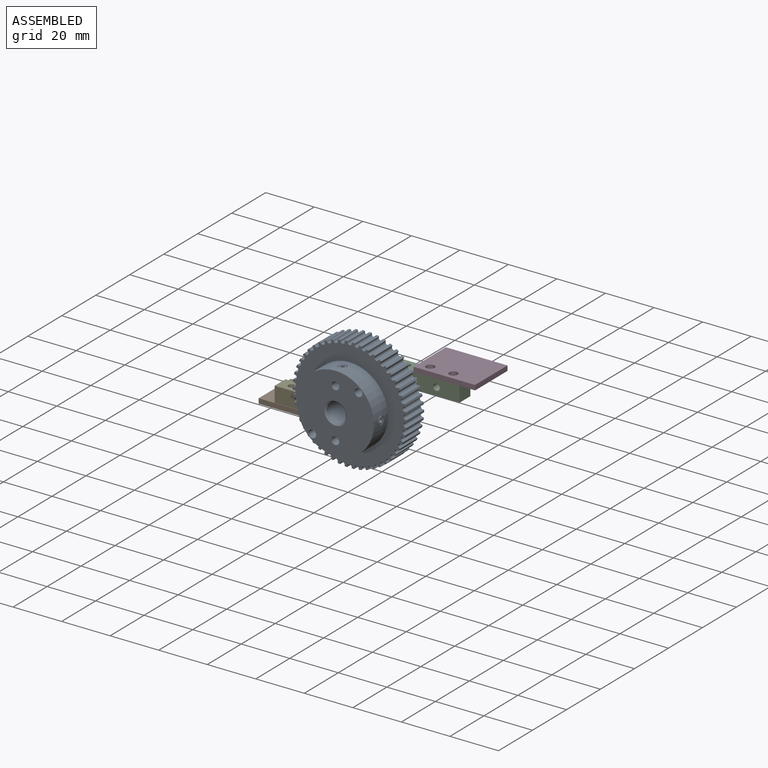
[diagram: assembled view]
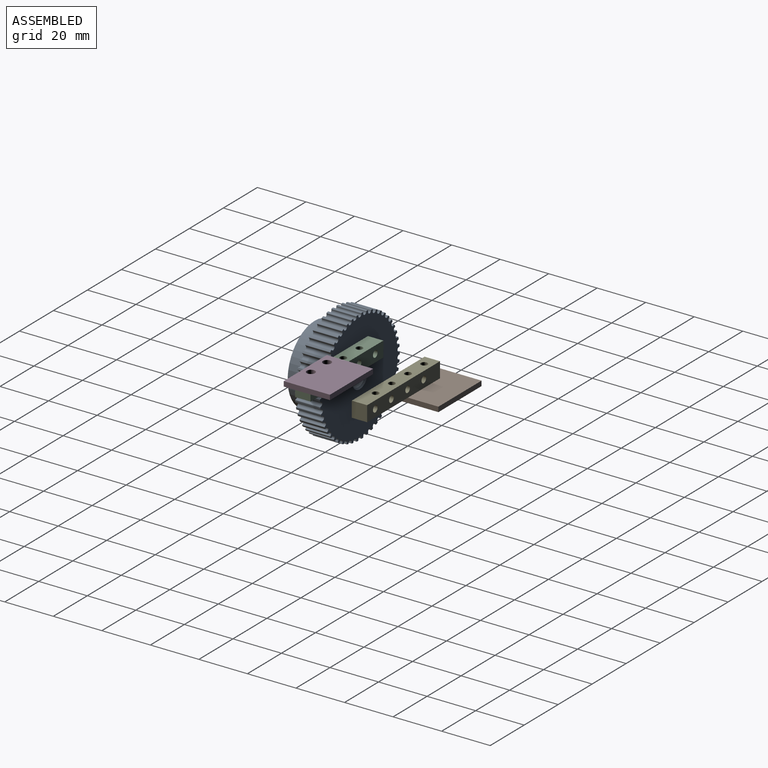
[diagram: assembled view, second angle]
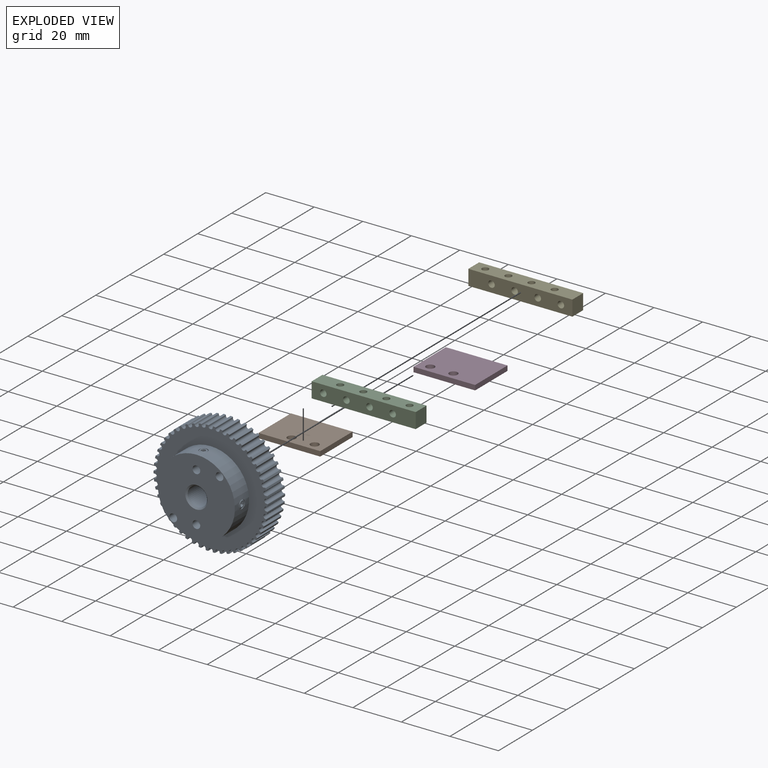
[diagram: exploded view]
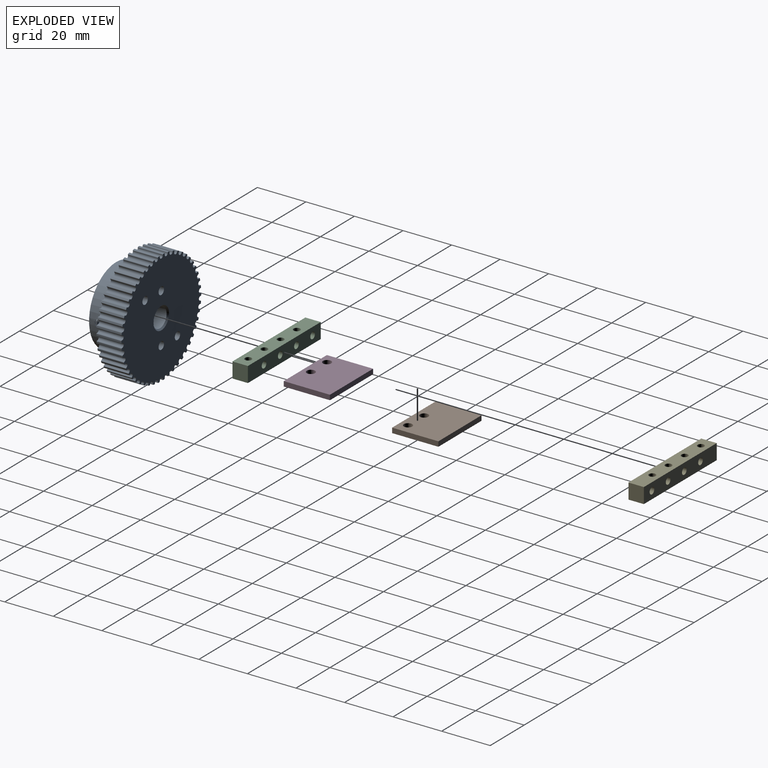
[diagram: exploded view, second angle]
ASSEMBLY  parts=5 mates=4
PART A: 287 faces, bbox 47x18.6x46.9 mm
  f0: plane 46.99x46.93mm, normal (0,1,0), area 1535.5mm2, adj f9,f10,f11,f12,f13,f14,f15,f16
  f1: plane 31.75x31.75mm, normal (0,-1,0), area 694.4mm2, adj f2,f7,f283,f284,f285,f286
  f2: revolved ~9.14x9.14mm, area 22.6mm2, adj f1,f3
  f3: revolved ~17.45x7.95mm, area 416.1mm2, adj f2,f5,f10,f261
  f4: revolved ~3.51x3.51mm, area 3.3mm2, adj f6,f7
  f5: revolved ~3.51x3.51mm, area 6.1mm2, adj f3,f281
  f6: revolved ~3.51x3.51mm, area 9.8mm2, adj f4,f273
  f7: revolved ~31.75x31.75mm, area 1643.3mm2, adj f1,f4,f8,f260
  f8: plane 46.99x46.93mm, normal (0,-1,0), area 841.1mm2, adj f7,f9,f11,f12,f13,f14,f15,f16
  f9: revolved ~10.31x1mm, area 15.7mm2, adj f0,f8,f11,f259
  f10: revolved ~9.14x9.14mm, area 22.6mm2, adj f0,f3
  f11: revolved ~10.31x1mm, area 15.4mm2, adj f0,f8,f9,f12
  f12: revolved ~10.31x0.29mm, area 4.7mm2, adj f0,f8,f11,f62
  f13: revolved ~10.31x0.63mm, area 6.6mm2, adj f0,f8,f63,f67
  f14: revolved ~10.31x0.61mm, area 6.6mm2, adj f0,f8,f70,f71
  f15: revolved ~10.31x0.58mm, area 6.6mm2, adj f0,f8,f74,f75
  f16: revolved ~10.31x0.54mm, area 6.6mm2, adj f0,f8,f78,f79
  f17: revolved ~10.31x0.49mm, area 6.6mm2, adj f0,f8,f82,f83
  f18: revolved ~10.31x0.47mm, area 6.6mm2, adj f0,f8,f86,f87
  f19: revolved ~10.31x0.52mm, area 6.6mm2, adj f0,f8,f90,f91
  f20: revolved ~10.31x0.56mm, area 6.6mm2, adj f0,f8,f94,f95
  f21: revolved ~10.31x0.59mm, area 6.6mm2, adj f0,f8,f98,f99
  f22: revolved ~10.31x0.62mm, area 6.6mm2, adj f0,f8,f102,f103
  f23: revolved ~10.31x0.63mm, area 6.6mm2, adj f0,f8,f106,f107
  f24: revolved ~10.31x0.64mm, area 6.6mm2, adj f0,f8,f110,f111
  f25: revolved ~10.31x0.63mm, area 6.6mm2, adj f0,f8,f114,f115
  f26: revolved ~10.31x0.62mm, area 6.6mm2, adj f0,f8,f118,f119
  f27: revolved ~10.31x0.6mm, area 6.6mm2, adj f0,f8,f122,f123
  f28: revolved ~10.31x0.56mm, area 6.6mm2, adj f0,f8,f126,f127
  f29: revolved ~10.31x0.52mm, area 6.6mm2, adj f0,f8,f130,f131
  f30: revolved ~10.31x0.47mm, area 6.6mm2, adj f0,f8,f134,f135
  f31: revolved ~10.31x0.49mm, area 6.6mm2, adj f0,f8,f138,f139
  f32: revolved ~10.31x0.54mm, area 6.6mm2, adj f0,f8,f142,f143
  f33: revolved ~10.31x0.58mm, area 6.6mm2, adj f0,f8,f146,f147
  f34: revolved ~10.31x0.61mm, area 6.6mm2, adj f0,f8,f150,f151
  f35: revolved ~10.31x0.63mm, area 6.6mm2, adj f0,f8,f154,f155
  f36: revolved ~10.31x0.64mm, area 6.6mm2, adj f0,f8,f158,f159
  f37: revolved ~10.31x0.64mm, area 6.6mm2, adj f0,f8,f162,f163
  f38: revolved ~10.31x0.63mm, area 6.6mm2, adj f0,f8,f166,f167
  f39: revolved ~10.31x0.61mm, area 6.6mm2, adj f0,f8,f170,f171
  f40: revolved ~10.31x0.58mm, area 6.6mm2, adj f0,f8,f174,f175
  f41: revolved ~10.31x0.54mm, area 6.6mm2, adj f0,f8,f178,f179
  f42: revolved ~10.31x0.49mm, area 6.6mm2, adj f0,f8,f182,f183
  f43: revolved ~10.31x0.47mm, area 6.6mm2, adj f0,f8,f186,f187
  f44: revolved ~10.31x0.52mm, area 6.6mm2, adj f0,f8,f190,f191
  f45: revolved ~10.31x0.56mm, area 6.6mm2, adj f0,f8,f194,f195
  f46: revolved ~10.31x0.59mm, area 6.6mm2, adj f0,f8,f198,f199
  f47: revolved ~10.31x0.62mm, area 6.6mm2, adj f0,f8,f202,f203
  f48: revolved ~10.31x0.63mm, area 6.6mm2, adj f0,f8,f206,f207
  f49: revolved ~10.31x0.64mm, area 6.6mm2, adj f0,f8,f210,f211
  f50: revolved ~10.31x0.63mm, area 6.6mm2, adj f0,f8,f214,f215
  f51: revolved ~10.31x0.62mm, area 6.6mm2, adj f0,f8,f218,f219
  f52: revolved ~10.31x0.6mm, area 6.6mm2, adj f0,f8,f222,f223
  f53: revolved ~10.31x0.56mm, area 6.6mm2, adj f0,f8,f226,f227
  f54: revolved ~10.31x0.52mm, area 6.6mm2, adj f0,f8,f230,f231
  f55: revolved ~10.31x0.47mm, area 6.6mm2, adj f0,f8,f234,f235
  f56: revolved ~10.31x0.49mm, area 6.6mm2, adj f0,f8,f238,f239
  f57: revolved ~10.31x0.54mm, area 6.6mm2, adj f0,f8,f242,f243
  f58: revolved ~10.31x0.58mm, area 6.6mm2, adj f0,f8,f246,f247
  f59: revolved ~10.31x0.61mm, area 6.6mm2, adj f0,f8,f250,f251
  f60: revolved ~10.31x0.63mm, area 6.6mm2, adj f0,f8,f254,f255
  f61: revolved ~10.31x0.64mm, area 6.6mm2, adj f0,f8,f66,f259
  f62: revolved ~10.31x0.64mm, area 6.6mm2, adj f0,f8,f12,f258
  f63: revolved ~10.31x0.3mm, area 4.7mm2, adj f0,f8,f13,f64
  f64: revolved ~10.31x1mm, area 15.7mm2, adj f0,f8,f63,f65
  f65: revolved ~10.31x1.1mm, area 15.4mm2, adj f0,f8,f64,f66
  f66: revolved ~10.31x0.33mm, area 4.7mm2, adj f0,f8,f61,f65
  f67: revolved ~10.31x0.35mm, area 4.7mm2, adj f0,f8,f13,f68
  f68: revolved ~10.31x1.19mm, area 15.4mm2, adj f0,f8,f67,f69
  f69: revolved ~10.31x1.1mm, area 15.7mm2, adj f0,f8,f68,f70
  f70: revolved ~10.31x0.33mm, area 4.7mm2, adj f0,f8,f14,f69
  f71: revolved ~10.31x0.38mm, area 4.7mm2, adj f0,f8,f14,f72
  f72: revolved ~10.31x1.25mm, area 15.4mm2, adj f0,f8,f71,f73
  f73: revolved ~10.31x1.19mm, area 15.7mm2, adj f0,f8,f72,f74
  f74: revolved ~10.31x0.35mm, area 4.7mm2, adj f0,f8,f15,f73
  f75: revolved ~10.31x0.39mm, area 4.7mm2, adj f0,f8,f15,f76
  f76: revolved ~10.31x1.3mm, area 15.4mm2, adj f0,f8,f75,f77
  f77: revolved ~10.31x1.26mm, area 15.7mm2, adj f0,f8,f76,f78
  f78: revolved ~10.31x0.37mm, area 4.7mm2, adj f0,f8,f16,f77
  f79: revolved ~10.31x0.4mm, area 4.7mm2, adj f0,f8,f16,f80
  f80: revolved ~10.31x1.33mm, area 15.4mm2, adj f0,f8,f79,f81
  f81: revolved ~10.31x1.3mm, area 15.7mm2, adj f0,f8,f80,f82
  f82: revolved ~10.31x0.39mm, area 4.7mm2, adj f0,f8,f17,f81
  f83: revolved ~10.31x0.41mm, area 4.7mm2, adj f0,f8,f17,f84
  f84: revolved ~10.31x1.33mm, area 15.4mm2, adj f0,f8,f83,f85
  f85: revolved ~10.31x1.33mm, area 15.7mm2, adj f0,f8,f84,f86
  f86: revolved ~10.31x0.39mm, area 4.7mm2, adj f0,f8,f18,f85
  f87: revolved ~10.31x0.4mm, area 4.7mm2, adj f0,f8,f18,f88
  f88: revolved ~10.31x1.32mm, area 15.4mm2, adj f0,f8,f87,f89
  f89: revolved ~10.31x1.33mm, area 15.7mm2, adj f0,f8,f88,f90
  f90: revolved ~10.31x0.39mm, area 4.7mm2, adj f0,f8,f19,f89
  f91: revolved ~10.31x0.4mm, area 4.7mm2, adj f0,f8,f19,f92
  f92: revolved ~10.31x1.28mm, area 15.4mm2, adj f0,f8,f91,f93
  f93: revolved ~10.31x1.32mm, area 15.7mm2, adj f0,f8,f92,f94
  f94: revolved ~10.31x0.39mm, area 4.7mm2, adj f0,f8,f20,f93
  f95: revolved ~10.31x0.38mm, area 4.7mm2, adj f0,f8,f20,f96
  f96: revolved ~10.31x1.22mm, area 15.4mm2, adj f0,f8,f95,f97
  f97: revolved ~10.31x1.28mm, area 15.7mm2, adj f0,f8,f96,f98
  f98: revolved ~10.31x0.38mm, area 4.7mm2, adj f0,f8,f21,f97
  f99: revolved ~10.31x0.36mm, area 4.7mm2, adj f0,f8,f21,f100
  f100: revolved ~10.31x1.15mm, area 15.4mm2, adj f0,f8,f99,f101
  f101: revolved ~10.31x1.22mm, area 15.7mm2, adj f0,f8,f100,f102
  f102: revolved ~10.31x0.36mm, area 4.7mm2, adj f0,f8,f22,f101
  f103: revolved ~10.31x0.33mm, area 4.7mm2, adj f0,f8,f22,f104
  f104: revolved ~10.31x1.06mm, area 15.4mm2, adj f0,f8,f103,f105
  f105: revolved ~10.31x1.15mm, area 15.7mm2, adj f0,f8,f104,f106
  f106: revolved ~10.31x0.34mm, area 4.7mm2, adj f0,f8,f23,f105
  f107: revolved ~10.31x0.3mm, area 4.7mm2, adj f0,f8,f23,f108
  f108: revolved ~10.31x0.94mm, area 15.4mm2, adj f0,f8,f107,f109
  f109: revolved ~10.31x1.05mm, area 15.7mm2, adj f0,f8,f108,f110
  f110: revolved ~10.31x0.31mm, area 4.7mm2, adj f0,f8,f24,f109
  f111: revolved ~10.31x0.31mm, area 4.7mm2, adj f0,f8,f24,f112
  f112: revolved ~10.31x1.05mm, area 15.4mm2, adj f0,f8,f111,f113
  f113: revolved ~10.31x0.95mm, area 15.7mm2, adj f0,f8,f112,f114
  f114: revolved ~10.31x0.28mm, area 4.7mm2, adj f0,f8,f25,f113
  f115: revolved ~10.31x0.34mm, area 4.7mm2, adj f0,f8,f25,f116
  f116: revolved ~10.31x1.15mm, area 15.4mm2, adj f0,f8,f115,f117
  f117: revolved ~10.31x1.06mm, area 15.7mm2, adj f0,f8,f116,f118
  f118: revolved ~10.31x0.31mm, area 4.7mm2, adj f0,f8,f26,f117
  f119: revolved ~10.31x0.37mm, area 4.7mm2, adj f0,f8,f26,f120
  f120: revolved ~10.31x1.22mm, area 15.4mm2, adj f0,f8,f119,f121
  f121: revolved ~10.31x1.15mm, area 15.7mm2, adj f0,f8,f120,f122
  f122: revolved ~10.31x0.34mm, area 4.7mm2, adj f0,f8,f27,f121
  f123: revolved ~10.31x0.39mm, area 4.7mm2, adj f0,f8,f27,f124
  f124: revolved ~10.31x1.28mm, area 15.4mm2, adj f0,f8,f123,f125
  f125: revolved ~10.31x1.22mm, area 15.7mm2, adj f0,f8,f124,f126
  f126: revolved ~10.31x0.36mm, area 4.7mm2, adj f0,f8,f28,f125
  f127: revolved ~10.31x0.4mm, area 4.7mm2, adj f0,f8,f28,f128
  f128: revolved ~10.31x1.32mm, area 15.4mm2, adj f0,f8,f127,f129
  f129: revolved ~10.31x1.28mm, area 15.7mm2, adj f0,f8,f128,f130
  f130: revolved ~10.31x0.38mm, area 4.7mm2, adj f0,f8,f29,f129
  f131: revolved ~10.31x0.41mm, area 4.7mm2, adj f0,f8,f29,f132
  f132: revolved ~10.31x1.33mm, area 15.4mm2, adj f0,f8,f131,f133
  f133: revolved ~10.31x1.32mm, area 15.7mm2, adj f0,f8,f132,f134
  f134: revolved ~10.31x0.39mm, area 4.7mm2, adj f0,f8,f30,f133
  f135: revolved ~10.31x0.41mm, area 4.7mm2, adj f0,f8,f30,f136
  f136: revolved ~10.31x1.33mm, area 15.4mm2, adj f0,f8,f135,f137
  f137: revolved ~10.31x1.33mm, area 15.7mm2, adj f0,f8,f136,f138
  f138: revolved ~10.31x0.39mm, area 4.7mm2, adj f0,f8,f31,f137
  f139: revolved ~10.31x0.4mm, area 4.7mm2, adj f0,f8,f31,f140
  f140: revolved ~10.31x1.3mm, area 15.4mm2, adj f0,f8,f139,f141
  f141: revolved ~10.31x1.33mm, area 15.7mm2, adj f0,f8,f140,f142
  f142: revolved ~10.31x0.39mm, area 4.7mm2, adj f0,f8,f32,f141
  f143: revolved ~10.31x0.39mm, area 4.7mm2, adj f0,f8,f32,f144
  f144: revolved ~10.31x1.26mm, area 15.4mm2, adj f0,f8,f143,f145
  f145: revolved ~10.31x1.3mm, area 15.7mm2, adj f0,f8,f144,f146
  f146: revolved ~10.31x0.38mm, area 4.7mm2, adj f0,f8,f33,f145
  f147: revolved ~10.31x0.37mm, area 4.7mm2, adj f0,f8,f33,f148
  f148: revolved ~10.31x1.19mm, area 15.4mm2, adj f0,f8,f147,f149
  f149: revolved ~10.31x1.25mm, area 15.7mm2, adj f0,f8,f148,f150
  f150: revolved ~10.31x0.37mm, area 4.7mm2, adj f0,f8,f34,f149
  f151: revolved ~10.31x0.35mm, area 4.7mm2, adj f0,f8,f34,f152
  f152: revolved ~10.31x1.1mm, area 15.4mm2, adj f0,f8,f151,f153
  f153: revolved ~10.31x1.19mm, area 15.7mm2, adj f0,f8,f152,f154
  f154: revolved ~10.31x0.35mm, area 4.7mm2, adj f0,f8,f35,f153
  f155: revolved ~10.31x0.32mm, area 4.7mm2, adj f0,f8,f35,f156
  f156: revolved ~10.31x1mm, area 15.4mm2, adj f0,f8,f155,f157
  f157: revolved ~10.31x1.1mm, area 15.7mm2, adj f0,f8,f156,f158
  f158: revolved ~10.31x0.32mm, area 4.7mm2, adj f0,f8,f36,f157
  f159: revolved ~10.31x0.29mm, area 4.7mm2, adj f0,f8,f36,f160
  f160: revolved ~10.31x1mm, area 15.4mm2, adj f0,f8,f159,f161
  f161: revolved ~10.31x1mm, area 15.7mm2, adj f0,f8,f160,f162
  f162: revolved ~10.31x0.29mm, area 4.7mm2, adj f0,f8,f37,f161
  f163: revolved ~10.31x0.33mm, area 4.7mm2, adj f0,f8,f37,f164
  f164: revolved ~10.31x1.1mm, area 15.4mm2, adj f0,f8,f163,f165
  f165: revolved ~10.31x1mm, area 15.7mm2, adj f0,f8,f164,f166
  f166: revolved ~10.31x0.3mm, area 4.7mm2, adj f0,f8,f38,f165
  f167: revolved ~10.31x0.35mm, area 4.7mm2, adj f0,f8,f38,f168
  f168: revolved ~10.31x1.19mm, area 15.4mm2, adj f0,f8,f167,f169
  f169: revolved ~10.31x1.1mm, area 15.7mm2, adj f0,f8,f168,f170
  f170: revolved ~10.31x0.33mm, area 4.7mm2, adj f0,f8,f39,f169
  f171: revolved ~10.31x0.38mm, area 4.7mm2, adj f0,f8,f39,f172
  f172: revolved ~10.31x1.25mm, area 15.4mm2, adj f0,f8,f171,f173
  f173: revolved ~10.31x1.19mm, area 15.7mm2, adj f0,f8,f172,f174
  f174: revolved ~10.31x0.35mm, area 4.7mm2, adj f0,f8,f40,f173
  f175: revolved ~10.31x0.39mm, area 4.7mm2, adj f0,f8,f40,f176
  f176: revolved ~10.31x1.3mm, area 15.4mm2, adj f0,f8,f175,f177
  f177: revolved ~10.31x1.26mm, area 15.7mm2, adj f0,f8,f176,f178
  f178: revolved ~10.31x0.37mm, area 4.7mm2, adj f0,f8,f41,f177
  f179: revolved ~10.31x0.4mm, area 4.7mm2, adj f0,f8,f41,f180
  f180: revolved ~10.31x1.33mm, area 15.4mm2, adj f0,f8,f179,f181
  f181: revolved ~10.31x1.3mm, area 15.7mm2, adj f0,f8,f180,f182
  f182: revolved ~10.31x0.39mm, area 4.7mm2, adj f0,f8,f42,f181
  f183: revolved ~10.31x0.41mm, area 4.7mm2, adj f0,f8,f42,f184
  f184: revolved ~10.31x1.33mm, area 15.4mm2, adj f0,f8,f183,f185
  f185: revolved ~10.31x1.33mm, area 15.7mm2, adj f0,f8,f184,f186
  f186: revolved ~10.31x0.39mm, area 4.7mm2, adj f0,f8,f43,f185
  f187: revolved ~10.31x0.4mm, area 4.7mm2, adj f0,f8,f43,f188
  f188: revolved ~10.31x1.32mm, area 15.4mm2, adj f0,f8,f187,f189
  f189: revolved ~10.31x1.33mm, area 15.7mm2, adj f0,f8,f188,f190
  f190: revolved ~10.31x0.39mm, area 4.7mm2, adj f0,f8,f44,f189
  f191: revolved ~10.31x0.4mm, area 4.7mm2, adj f0,f8,f44,f192
  f192: revolved ~10.31x1.28mm, area 15.4mm2, adj f0,f8,f191,f193
  f193: revolved ~10.31x1.32mm, area 15.7mm2, adj f0,f8,f192,f194
  f194: revolved ~10.31x0.39mm, area 4.7mm2, adj f0,f8,f45,f193
  f195: revolved ~10.31x0.38mm, area 4.7mm2, adj f0,f8,f45,f196
  f196: revolved ~10.31x1.22mm, area 15.4mm2, adj f0,f8,f195,f197
  f197: revolved ~10.31x1.28mm, area 15.7mm2, adj f0,f8,f196,f198
  f198: revolved ~10.31x0.38mm, area 4.7mm2, adj f0,f8,f46,f197
  f199: revolved ~10.31x0.36mm, area 4.7mm2, adj f0,f8,f46,f200
  f200: revolved ~10.31x1.15mm, area 15.4mm2, adj f0,f8,f199,f201
  f201: revolved ~10.31x1.22mm, area 15.7mm2, adj f0,f8,f200,f202
  f202: revolved ~10.31x0.36mm, area 4.7mm2, adj f0,f8,f47,f201
  f203: revolved ~10.31x0.33mm, area 4.7mm2, adj f0,f8,f47,f204
  f204: revolved ~10.31x1.06mm, area 15.4mm2, adj f0,f8,f203,f205
  f205: revolved ~10.31x1.15mm, area 15.7mm2, adj f0,f8,f204,f206
  f206: revolved ~10.31x0.34mm, area 4.7mm2, adj f0,f8,f48,f205
  f207: revolved ~10.31x0.3mm, area 4.7mm2, adj f0,f8,f48,f208
  f208: revolved ~10.31x0.94mm, area 15.4mm2, adj f0,f8,f207,f209
  f209: revolved ~10.31x1.05mm, area 15.7mm2, adj f0,f8,f208,f210
  f210: revolved ~10.31x0.31mm, area 4.7mm2, adj f0,f8,f49,f209
  f211: revolved ~10.31x0.31mm, area 4.7mm2, adj f0,f8,f49,f212
  f212: revolved ~10.31x1.05mm, area 15.4mm2, adj f0,f8,f211,f213
  f213: revolved ~10.31x0.95mm, area 15.7mm2, adj f0,f8,f212,f214
  f214: revolved ~10.31x0.28mm, area 4.7mm2, adj f0,f8,f50,f213
  f215: revolved ~10.31x0.34mm, area 4.7mm2, adj f0,f8,f50,f216
  f216: revolved ~10.31x1.15mm, area 15.4mm2, adj f0,f8,f215,f217
  f217: revolved ~10.31x1.06mm, area 15.7mm2, adj f0,f8,f216,f218
  f218: revolved ~10.31x0.31mm, area 4.7mm2, adj f0,f8,f51,f217
  f219: revolved ~10.31x0.37mm, area 4.7mm2, adj f0,f8,f51,f220
  f220: revolved ~10.31x1.22mm, area 15.4mm2, adj f0,f8,f219,f221
  f221: revolved ~10.31x1.15mm, area 15.7mm2, adj f0,f8,f220,f222
  f222: revolved ~10.31x0.34mm, area 4.7mm2, adj f0,f8,f52,f221
  f223: revolved ~10.31x0.39mm, area 4.7mm2, adj f0,f8,f52,f224
  f224: revolved ~10.31x1.28mm, area 15.4mm2, adj f0,f8,f223,f225
  f225: revolved ~10.31x1.22mm, area 15.7mm2, adj f0,f8,f224,f226
  f226: revolved ~10.31x0.36mm, area 4.7mm2, adj f0,f8,f53,f225
  f227: revolved ~10.31x0.4mm, area 4.7mm2, adj f0,f8,f53,f228
  f228: revolved ~10.31x1.32mm, area 15.4mm2, adj f0,f8,f227,f229
  f229: revolved ~10.31x1.28mm, area 15.7mm2, adj f0,f8,f228,f230
  f230: revolved ~10.31x0.38mm, area 4.7mm2, adj f0,f8,f54,f229
  f231: revolved ~10.31x0.41mm, area 4.7mm2, adj f0,f8,f54,f232
  f232: revolved ~10.31x1.33mm, area 15.4mm2, adj f0,f8,f231,f233
  f233: revolved ~10.31x1.32mm, area 15.7mm2, adj f0,f8,f232,f234
  f234: revolved ~10.31x0.39mm, area 4.7mm2, adj f0,f8,f55,f233
  f235: revolved ~10.31x0.41mm, area 4.7mm2, adj f0,f8,f55,f236
  f236: revolved ~10.31x1.33mm, area 15.4mm2, adj f0,f8,f235,f237
  f237: revolved ~10.31x1.33mm, area 15.7mm2, adj f0,f8,f236,f238
  f238: revolved ~10.31x0.39mm, area 4.7mm2, adj f0,f8,f56,f237
  f239: revolved ~10.31x0.4mm, area 4.7mm2, adj f0,f8,f56,f240
  f240: revolved ~10.31x1.3mm, area 15.4mm2, adj f0,f8,f239,f241
  f241: revolved ~10.31x1.33mm, area 15.7mm2, adj f0,f8,f240,f242
  f242: revolved ~10.31x0.39mm, area 4.7mm2, adj f0,f8,f57,f241
  f243: revolved ~10.31x0.39mm, area 4.7mm2, adj f0,f8,f57,f244
  f244: revolved ~10.31x1.26mm, area 15.4mm2, adj f0,f8,f243,f245
  f245: revolved ~10.31x1.3mm, area 15.7mm2, adj f0,f8,f244,f246
  f246: revolved ~10.31x0.38mm, area 4.7mm2, adj f0,f8,f58,f245
  f247: revolved ~10.31x0.37mm, area 4.7mm2, adj f0,f8,f58,f248
  f248: revolved ~10.31x1.19mm, area 15.4mm2, adj f0,f8,f247,f249
  f249: revolved ~10.31x1.25mm, area 15.7mm2, adj f0,f8,f248,f250
  f250: revolved ~10.31x0.37mm, area 4.7mm2, adj f0,f8,f59,f249
  f251: revolved ~10.31x0.35mm, area 4.7mm2, adj f0,f8,f59,f252
  f252: revolved ~10.31x1.1mm, area 15.4mm2, adj f0,f8,f251,f253
  f253: revolved ~10.31x1.19mm, area 15.7mm2, adj f0,f8,f252,f254
  f254: revolved ~10.31x0.35mm, area 4.7mm2, adj f0,f8,f60,f253
  f255: revolved ~10.31x0.32mm, area 4.7mm2, adj f0,f8,f60,f256
  f256: revolved ~10.31x1mm, area 15.4mm2, adj f0,f8,f255,f257
  f257: revolved ~10.31x1.1mm, area 15.7mm2, adj f0,f8,f256,f258
  f258: revolved ~10.31x0.32mm, area 4.7mm2, adj f0,f8,f62,f257
  f259: revolved ~10.31x0.29mm, area 4.7mm2, adj f0,f8,f9,f61
  f260: revolved ~3.51x3.51mm, area 3.3mm2, adj f7,f262
  f261: revolved ~3.51x3.51mm, area 6.1mm2, adj f3,f263
  f262: revolved ~3.51x3.51mm, area 9.8mm2, adj f260,f265
  f263: revolved ~3.51x3.51mm, area 4.9mm2, adj f261,f264
  f264: plane 2.8x2.8mm, normal (-1,0,0), area 6.2mm2, adj f263
  f265: plane 2.8x2.8mm, normal (1,0,0), area 3.5mm2, adj f262,f266,f267,f268,f269,f270,f271
  f266: plane 1.75x0.88mm, normal (0,-0.5,-0.87), area 1.8mm2, adj f265,f267,f271,f272
  f267: plane 1.75x1.01mm, normal (0,-1,0), area 1.8mm2, adj f265,f266,f268,f272
  f268: plane 1.75x0.88mm, normal (0,-0.5,0.87), area 1.8mm2, adj f265,f267,f269,f272
  f269: plane 1.75x0.88mm, normal (0,0.5,0.87), area 1.8mm2, adj f265,f268,f270,f272
  f270: plane 1.75x1.01mm, normal (0,1,0), area 1.8mm2, adj f265,f269,f271,f272
  f271: plane 1.75x0.88mm, normal (0,0.5,-0.87), area 1.8mm2, adj f265,f266,f270,f272
  f272: plane 2.02x1.75mm, normal (1,0,0), area 2.7mm2, adj f266,f267,f268,f269,f270,f271
  f273: plane 2.8x2.8mm, normal (0,0,1), area 3.5mm2, adj f6,f274,f275,f276,f277,f278,f279
  f274: plane 1.75x0.88mm, normal (0.87,-0.5,0), area 1.8mm2, adj f273,f275,f279,f280
  f275: plane 1.75x1.01mm, normal (0,-1,0), area 1.8mm2, adj f273,f274,f276,f280
  f276: plane 1.75x0.88mm, normal (-0.87,-0.5,0), area 1.8mm2, adj f273,f275,f277,f280
  f277: plane 1.75x0.88mm, normal (-0.87,0.5,0), area 1.8mm2, adj f273,f276,f278,f280
  f278: plane 1.75x1.01mm, normal (0,1,0), area 1.8mm2, adj f273,f277,f279,f280
  f279: plane 1.75x0.88mm, normal (0.87,0.5,0), area 1.8mm2, adj f273,f274,f278,f280
  f280: plane 2.02x1.75mm, normal (0,0,1), area 2.7mm2, adj f274,f275,f276,f277,f278,f279
  f281: revolved ~3.51x3.51mm, area 4.9mm2, adj f5,f282
  f282: plane 2.8x2.8mm, normal (0,0,-1), area 6.2mm2, adj f281
  f283: cylinder r=1.59mm len=18.64mm, axis (0,1,0), area 186mm2, adj f0,f1
  f284: cylinder r=1.59mm len=18.64mm, axis (0,1,0), area 186mm2, adj f0,f1
  f285: cylinder r=1.59mm len=18.64mm, axis (0,1,0), area 186mm2, adj f0,f1
  f286: cylinder r=1.59mm len=18.64mm, axis (0,1,0), area 186mm2, adj f0,f1
PART B: 8 faces, bbox 25.4x19.1x2 mm
  f0: plane 19.05x2.03mm, normal (1,0,0), area 38.7mm2, adj f1,f3,f4,f5
  f1: plane 25.4x2.03mm, normal (0,1,0), area 51.6mm2, adj f0,f2,f4,f5
  f2: plane 19.05x2.03mm, normal (-1,0,0), area 38.7mm2, adj f1,f3,f4,f5
  f3: plane 25.4x2.03mm, normal (0,-1,0), area 51.6mm2, adj f0,f2,f4,f5
  f4: plane 25.4x19.05mm, normal (0,0,1), area 465.4mm2, adj f0,f1,f2,f3,f6,f7
  f5: plane 25.4x19.05mm, normal (0,0,-1), area 465.4mm2, adj f0,f1,f2,f3,f6,f7
  f6: cylinder r=1.71mm len=3.43mm, axis (0,0,1), area 21.9mm2, adj f4,f5
  f7: cylinder r=1.71mm len=3.43mm, axis (0,0,1), area 21.9mm2, adj f4,f5
PART C: 14 faces, bbox 6.4x42.9x6.4 mm
  f0: plane 42.86x6.35mm, normal (-1,0,0), area 249.2mm2, adj f1,f3,f4,f5,f6,f7,f8,f9
  f1: plane 6.35x6.35mm, normal (0,-1,0), area 40.3mm2, adj f0,f2,f4,f5
  f2: plane 42.86x6.35mm, normal (1,0,0), area 249.2mm2, adj f1,f3,f4,f5,f6,f7,f8,f9
  f3: plane 6.35x6.35mm, normal (0,1,0), area 40.3mm2, adj f0,f2,f4,f5
  f4: plane 42.86x6.35mm, normal (0,0,1), area 249.2mm2, adj f0,f1,f2,f3,f10,f11,f12,f13
  f5: plane 42.86x6.35mm, normal (0,0,-1), area 249.2mm2, adj f0,f1,f2,f3,f10,f11,f12,f13
  f6: cylinder r=1.35mm len=6.35mm, axis (-1,0,0), area 54mm2, adj f0,f2
  f7: cylinder r=1.35mm len=6.35mm, axis (-1,0,0), area 54mm2, adj f0,f2
  f8: cylinder r=1.35mm len=6.35mm, axis (-1,0,0), area 54mm2, adj f0,f2
  f9: cylinder r=1.35mm len=6.35mm, axis (-1,0,0), area 54mm2, adj f0,f2
  f10: cylinder r=1.35mm len=6.35mm, axis (0,0,-1), area 54mm2, adj f4,f5
  f11: cylinder r=1.35mm len=6.35mm, axis (0,0,-1), area 54mm2, adj f4,f5
  f12: cylinder r=1.35mm len=6.35mm, axis (0,0,-1), area 54mm2, adj f4,f5
  f13: cylinder r=1.35mm len=6.35mm, axis (0,0,-1), area 54mm2, adj f4,f5
PART D: same geometry as B
PART E: same geometry as C
PLACE A t=(38.55,42.96,-39.25)mm
PLACE B t=(61.32,36,-54.67)mm
PLACE C rot(axis=(-0.58,-0.58,-0.58),120deg) t=(33.79,56.44,-29.04)mm
PLACE D rot(axis=(0,-1,0),180deg) t=(15.78,36,-23.83)mm
PLACE E rot(axis=(0,0,-1),90deg) t=(0.45,56.44,-49.47)mm
MATE fastened D.f7 <-> C.f9  axis (0,0,-1) through (62.36,56.44,-25.86)mm
MATE fastened B.f7 <-> E.f11  axis (0,0,1) through (14.74,56.44,-52.64)mm
MATE fastened C.f10 <-> A.f283  axis (0,-1,0) through (38.55,53.27,-29.04)mm
MATE fastened E.f6 <-> A.f285  axis (0,-1,0) through (38.55,53.27,-49.47)mm
